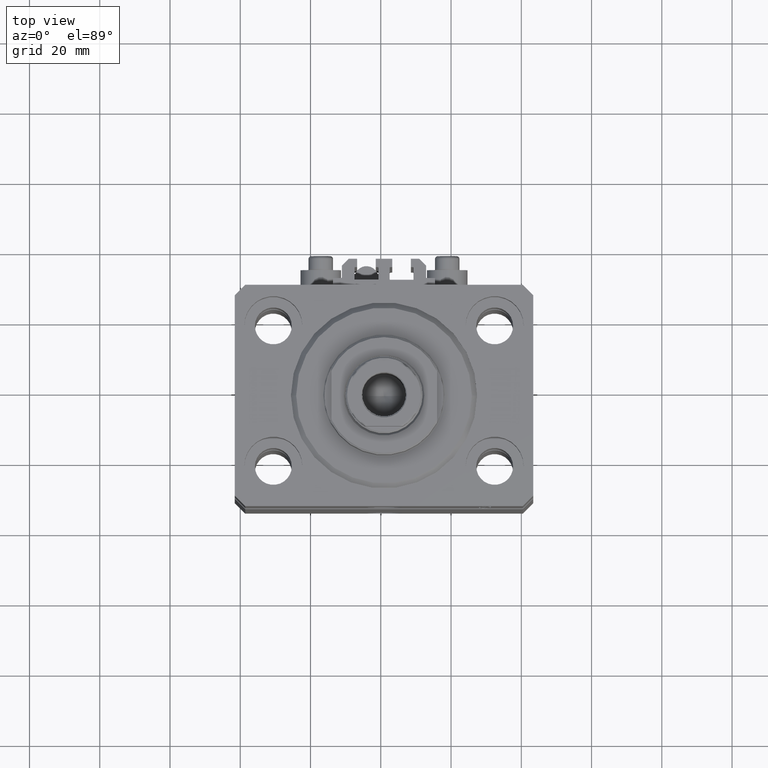
[diagram: clean part render]
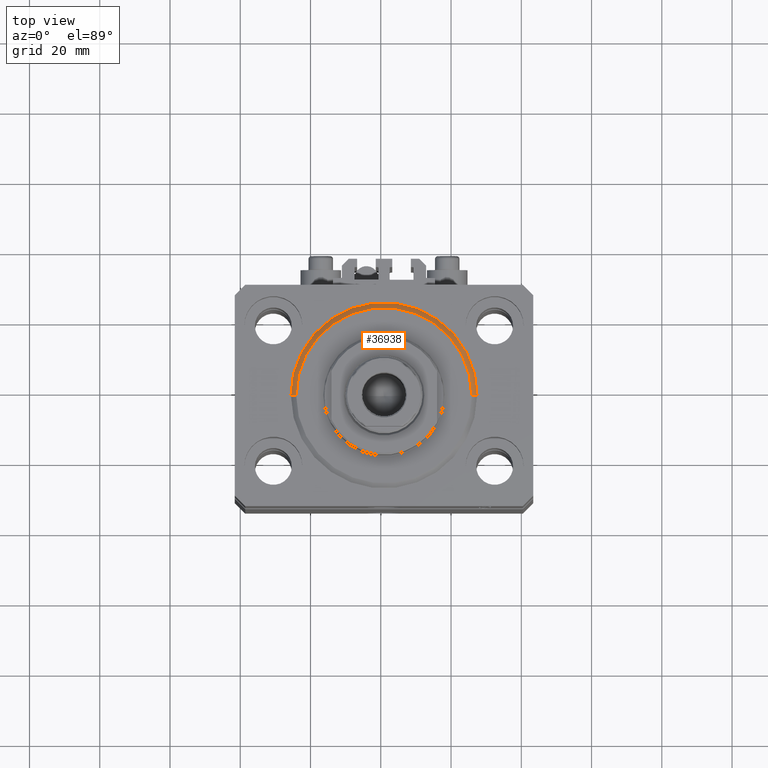
[diagram: same view with one face highlighted and labeled with its STEP entity id]
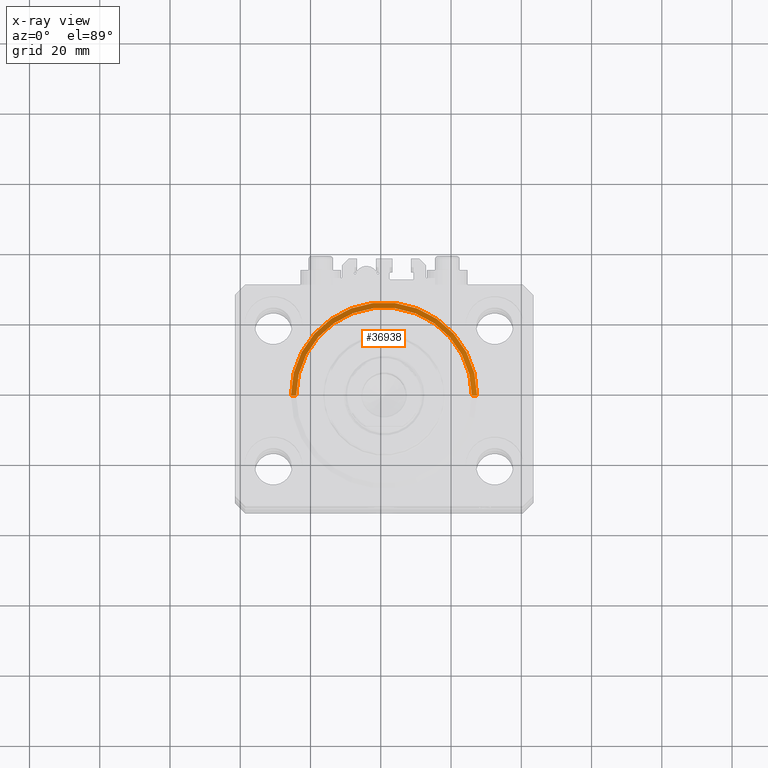
[diagram: x-ray of the same camera — body ghosted, the highlighted face saturated]
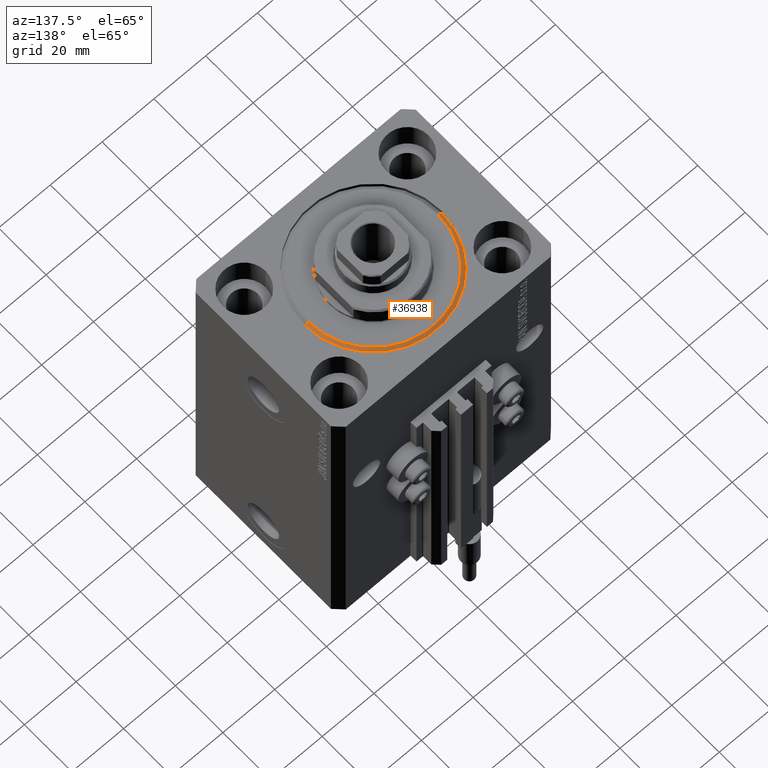
[diagram: same view with one face highlighted and labeled with its STEP entity id]
A machine part, top view. The second image highlights one B-rep face of the part: STEP entity #36938.
The next image is the same camera in x-ray: the body ghosted, the highlighted face saturated — about 0% of this face is hidden behind the body in this view.
A second angle (auxiliary view) of the same face is appended — the face is thin or edge-on in the first view.
In plain terms, the highlighted conical surface has half-angle 45 deg.
Its self-contained STEP definition (entity closure, byte-faithful):
#291 = EDGE_LOOP ( 'NONE', ( #28473, #32410, #25049, #7300 ) ) ;
#361 = DIRECTION ( 'NONE',  ( 1.000000000000000000, 0.000000000000000000, 0.000000000000000000 ) ) ;
#1863 = CARTESIAN_POINT ( 'NONE',  ( 0.000000000000000000, 0.000000000000000000, 1.500000000000046407 ) ) ;
#3996 = AXIS2_PLACEMENT_3D ( 'NONE', #44886, #34093, #361 ) ;
#6123 = CARTESIAN_POINT ( 'NONE',  ( -26.50000000000000355, 3.245314017740486554E-15, 1.500000000000046407 ) ) ;
#7300 = ORIENTED_EDGE ( 'NONE', *, *, #16161, .F. ) ;
#7896 = CONICAL_SURFACE ( 'NONE', #3996, 26.50000000000000355, 0.7853981633974506105 ) ;
#9799 = LINE ( 'NONE', #6123, #35124 ) ;
#12933 = CARTESIAN_POINT ( 'NONE',  ( -24.99999999999995026, 3.153465507804431248E-15, 0.000000000000000000 ) ) ;
#13587 = CARTESIAN_POINT ( 'NONE',  ( -26.50000000000000355, 0.000000000000000000, 1.500000000000046407 ) ) ;
#14826 = VECTOR ( 'NONE', #23196, 1000.000000000000000 ) ;
#14857 = CIRCLE ( 'NONE', #21115, 24.99999999999995026 ) ;
#16161 = EDGE_CURVE ( 'NONE', #35311, #41514, #30506, .T. ) ;
#17106 = CARTESIAN_POINT ( 'NONE',  ( 24.99999999999995026, 0.000000000000000000, 0.000000000000000000 ) ) ;
#19170 = CARTESIAN_POINT ( 'NONE',  ( 26.50000000000000355, 3.245314017740485765E-15, 1.500000000000046407 ) ) ;
#20817 = DIRECTION ( 'NONE',  ( -0.7071067811865491270, 8.659560562354952580E-17, 0.7071067811865459074 ) ) ;
#21115 = AXIS2_PLACEMENT_3D ( 'NONE', #43213, #31220, #46169 ) ;
#23196 = DIRECTION ( 'NONE',  ( 0.7071067811865491270, 0.000000000000000000, 0.7071067811865459074 ) ) ;
#25049 = ORIENTED_EDGE ( 'NONE', *, *, #44382, .F. ) ;
#26080 = CIRCLE ( 'NONE', #46360, 26.50000000000000355 ) ;
#28473 = ORIENTED_EDGE ( 'NONE', *, *, #37662, .F. ) ;
#29960 = FACE_OUTER_BOUND ( 'NONE', #291, .T. ) ;
#30506 = LINE ( 'NONE', #45932, #14826 ) ;
#31220 = DIRECTION ( 'NONE',  ( -0.000000000000000000, -0.000000000000000000, -1.000000000000000000 ) ) ;
#32410 = ORIENTED_EDGE ( 'NONE', *, *, #33387, .T. ) ;
#32611 = VERTEX_POINT ( 'NONE', #12933 ) ;
#33387 = EDGE_CURVE ( 'NONE', #32611, #43006, #9799, .T. ) ;
#34093 = DIRECTION ( 'NONE',  ( -0.000000000000000000, -0.000000000000000000, 1.000000000000000000 ) ) ;
#35124 = VECTOR ( 'NONE', #20817, 1000.000000000000000 ) ;
#35311 = VERTEX_POINT ( 'NONE', #17106 ) ;
#36938 = ADVANCED_FACE ( 'NONE', ( #29960 ), #7896, .T. ) ;
#37662 = EDGE_CURVE ( 'NONE', #32611, #35311, #14857, .T. ) ;
#41514 = VERTEX_POINT ( 'NONE', #19170 ) ;
#42224 = DIRECTION ( 'NONE',  ( 1.000000000000000000, 0.000000000000000000, 0.000000000000000000 ) ) ;
#43006 = VERTEX_POINT ( 'NONE', #13587 ) ;
#43213 = CARTESIAN_POINT ( 'NONE',  ( 0.000000000000000000, 0.000000000000000000, 0.000000000000000000 ) ) ;
#44382 = EDGE_CURVE ( 'NONE', #41514, #43006, #26080, .T. ) ;
#44886 = CARTESIAN_POINT ( 'NONE',  ( 0.000000000000000000, 0.000000000000000000, 1.500000000000046407 ) ) ;
#45932 = CARTESIAN_POINT ( 'NONE',  ( 26.50000000000000355, 0.000000000000000000, 1.500000000000046407 ) ) ;
#46169 = DIRECTION ( 'NONE',  ( 1.000000000000000000, 0.000000000000000000, 0.000000000000000000 ) ) ;
#46360 = AXIS2_PLACEMENT_3D ( 'NONE', #1863, #46625, #42224 ) ;
#46625 = DIRECTION ( 'NONE',  ( -0.000000000000000000, -0.000000000000000000, 1.000000000000000000 ) ) ;